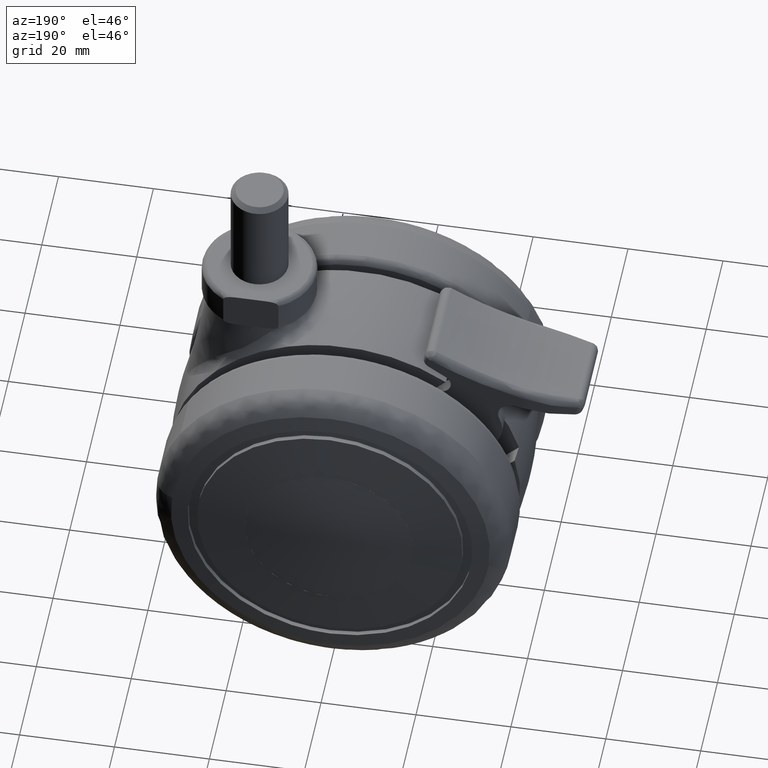
[diagram: clean part render]
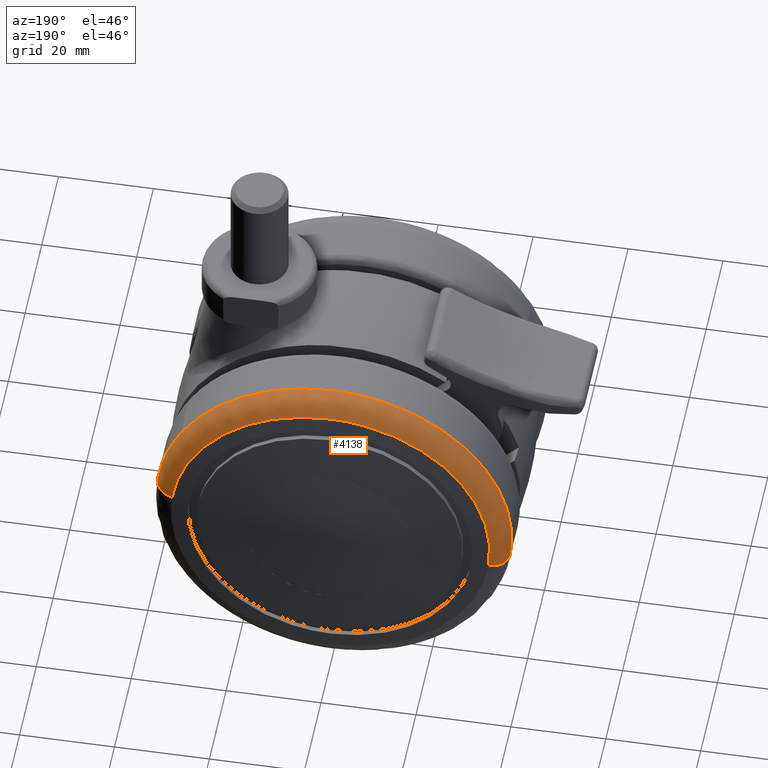
[diagram: same view with one face highlighted and labeled with its STEP entity id]
A machine part, auxiliary view. The second image highlights one B-rep face of the part: STEP entity #4138.
In plain terms, the highlighted face is a freeform B-spline surface patch.
Its self-contained STEP definition (entity closure, byte-faithful):
#3139=CARTESIAN_POINT('',(32.339734353394192,24.399329006749241,18.983982246888448));
#3140=VERTEX_POINT('',#3139);
#3146=CARTESIAN_POINT('',(0.0,24.399333999994649,37.500000000000000));
#3147=VERTEX_POINT('',#3146);
#3148=CARTESIAN_POINT('',(0.0,24.399333999994649,37.500000000000000));
#3149=CARTESIAN_POINT('',(21.470512347226343,24.399331796969498,37.499999999997542));
#3150=CARTESIAN_POINT('',(32.339734353394192,24.399329006749230,18.983982246888456));
#3158=(BOUNDED_CURVE()B_SPLINE_CURVE(2,(#3148,#3149,#3150),.UNSPECIFIED.,.F.,.U.)B_SPLINE_CURVE_WITH_KNOTS((3,3),(0.0,0.163621897406238),.UNSPECIFIED.)CURVE()GEOMETRIC_REPRESENTATION_ITEM()RATIONAL_B_SPLINE_CURVE((1.0,0.808305023201290,0.867534013018978))REPRESENTATION_ITEM(''));
#3159=EDGE_CURVE('',#3147,#3140,#3158,.T.);
#3161=CARTESIAN_POINT('',(-37.204308988794310,24.399327215464631,-4.699935389107674));
#3162=VERTEX_POINT('',#3161);
#3163=CARTESIAN_POINT('',(-37.204308988794303,24.399327215464631,-4.699935389107673));
#3164=CARTESIAN_POINT('',(-37.499999999941700,24.399327403620362,-2.359269223915413));
#3165=CARTESIAN_POINT('',(-37.499999999943590,24.399327617040800,7.133097E-012));
#3166=CARTESIAN_POINT('',(-37.499999999973568,24.399331009305818,37.500000000003332));
#3167=CARTESIAN_POINT('',(0.0,24.399333999994649,37.500000000000000));
#3175=(BOUNDED_CURVE()B_SPLINE_CURVE(2,(#3163,#3164,#3165,#3166,#3167),.UNSPECIFIED.,.F.,.U.)B_SPLINE_CURVE_WITH_KNOTS((3,2,3),(0.728321532286490,0.750000000000000,1.0),.UNSPECIFIED.)CURVE()GEOMETRIC_REPRESENTATION_ITEM()RATIONAL_B_SPLINE_CURVE((0.953608891764519,0.974602095249786,1.0,0.707106781186547,1.0))REPRESENTATION_ITEM(''));
#3176=EDGE_CURVE('',#3162,#3147,#3175,.T.);
#3308=CARTESIAN_POINT('',(37.204308988794310,24.399327215464631,4.699935389107671));
#3309=VERTEX_POINT('',#3308);
#3325=CARTESIAN_POINT('',(32.339734353394192,24.399329006749230,18.983982246888456));
#3326=CARTESIAN_POINT('',(36.238962510509886,24.399328005778571,12.341540153044839));
#3327=CARTESIAN_POINT('',(37.204308988794310,24.399327215464627,4.699935389107671));
#3335=(BOUNDED_CURVE()B_SPLINE_CURVE(2,(#3325,#3326,#3327),.UNSPECIFIED.,.F.,.U.)B_SPLINE_CURVE_WITH_KNOTS((3,3),(0.163621897406238,0.228321532286490),.UNSPECIFIED.)CURVE()GEOMETRIC_REPRESENTATION_ITEM()RATIONAL_B_SPLINE_CURVE((0.867534013018978,0.890954435812489,0.953608891764519))REPRESENTATION_ITEM(''));
#3336=EDGE_CURVE('',#3140,#3309,#3335,.T.);
#4044=CARTESIAN_POINT('',(33.110638410765013,28.888321986242559,3.710672911504585));
#4045=CARTESIAN_POINT('',(33.081367960840929,28.888321986242563,3.942372380655148));
#4046=CARTESIAN_POINT('',(28.876496757012045,28.888321986242580,37.227355300306577));
#4047=CARTESIAN_POINT('',(-4.175429271647273,28.888321986242563,33.051926028659302));
#4048=CARTESIAN_POINT('',(-37.227355300306577,28.888321986242580,28.876496757012045));
#4049=CARTESIAN_POINT('',(-33.022487492198991,28.888321986242563,-4.408459282737471));
#4050=CARTESIAN_POINT('',(-32.993220398499851,28.888321986242563,-4.640132184632035));
#4051=CARTESIAN_POINT('',(37.549752507749339,28.575279005864250,4.208159556926757));
#4052=CARTESIAN_POINT('',(37.516557794412670,28.575279005864243,4.470922769609234));
#4053=CARTESIAN_POINT('',(32.747943215860715,28.575279005864260,42.218394000826102));
#4054=CARTESIAN_POINT('',(-4.735225392482692,28.575279005864250,37.483168608343398));
#4055=CARTESIAN_POINT('',(-42.218394000826102,28.575279005864260,32.747943215860715));
#4056=CARTESIAN_POINT('',(-37.449783273256770,28.575279005864246,-4.999497531689468));
#4057=CARTESIAN_POINT('',(-37.416592366111153,28.575279005864239,-5.262230615267364));
#4058=CARTESIAN_POINT('',(37.260961846499086,24.107298746891260,4.175795104435609));
#4059=CARTESIAN_POINT('',(37.228022429737607,24.107298746891257,4.436537436636194));
#4060=CARTESIAN_POINT('',(32.496082696302217,24.107298746891271,41.893697375517945));
#4061=CARTESIAN_POINT('',(-4.698807339607861,24.107298746891264,37.194890035910078));
#4062=CARTESIAN_POINT('',(-41.893697375517945,24.107298746891271,32.496082696302217));
#4063=CARTESIAN_POINT('',(-37.161761463447760,24.107298746891257,-4.961046993359085));
#4064=CARTESIAN_POINT('',(-37.128825823604373,24.107298746891253,-5.221759428174432));
#4072=(BOUNDED_SURFACE()B_SPLINE_SURFACE(2,2,((#4044,#4051,#4058),(#4045,#4052,#4059),(#4046,#4053,#4060),(#4047,#4054,#4061),(#4048,#4055,#4062),(#4049,#4056,#4063),(#4050,#4057,#4064)),.UNSPECIFIED.,.F.,.F.,.U.)B_SPLINE_SURFACE_WITH_KNOTS((3,1,2,1,3),(3,3),(0.0,0.621235380450436,62.737552711247858,124.853870042045300,125.475033561691500),(0.0,7.429652838538877),.UNSPECIFIED.)GEOMETRIC_REPRESENTATION_ITEM()RATIONAL_B_SPLINE_SURFACE(((0.919162393050953,0.651133175099914,0.917905743474121),(0.916485597906730,0.649236937683624,0.915232607959046),(0.646160401141329,0.457738998897080,0.645276991201150),(0.913808802762508,0.647340700267334,0.912559472443971),(0.646160401141329,0.457738998897080,0.645276991201150),(0.916485288271030,0.649236718338187,0.915232298746670),(0.919161773779553,0.651132736409040,0.917905125049369)))REPRESENTATION_ITEM('')SURFACE());
#4073=ORIENTED_EDGE('',*,*,#3159,.T.);
#4074=ORIENTED_EDGE('',*,*,#3336,.T.);
#4075=CARTESIAN_POINT('',(33.339904526506977,28.858494214493330,4.211809416987338));
#4076=VERTEX_POINT('',#4075);
#4077=CARTESIAN_POINT('',(33.339904526506984,28.858494214493319,4.211809416987339));
#4078=CARTESIAN_POINT('',(37.204311022734984,28.330118050259454,4.699966566886529));
#4079=CARTESIAN_POINT('',(37.204308988794317,24.399327215464638,4.699935389107671));
#4087=(BOUNDED_CURVE()B_SPLINE_CURVE(2,(#4077,#4078,#4079),.UNSPECIFIED.,.F.,.U.)B_SPLINE_CURVE_WITH_KNOTS((3,3),(-1.708945455329805,-0.294709762184682),.UNSPECIFIED.)CURVE()GEOMETRIC_REPRESENTATION_ITEM()RATIONAL_B_SPLINE_CURVE((0.890702966076892,0.670389822836261,0.889567064219011))REPRESENTATION_ITEM(''));
#4088=EDGE_CURVE('',#4076,#3309,#4087,.T.);
#4089=ORIENTED_EDGE('',*,*,#4088,.F.);
#4090=CARTESIAN_POINT('',(0.0,28.858494288676152,33.604889112773037));
#4091=VERTEX_POINT('',#4090);
#4092=CARTESIAN_POINT('',(0.0,28.858494288676152,33.604889112773037));
#4093=CARTESIAN_POINT('',(29.626695034887806,28.858494288676155,33.604889112773058));
#4094=CARTESIAN_POINT('',(33.339904526506984,28.858494214493327,4.211809416987338));
#4102=(BOUNDED_CURVE()B_SPLINE_CURVE(2,(#4092,#4093,#4094),.UNSPECIFIED.,.F.,.U.)B_SPLINE_CURVE_WITH_KNOTS((3,3),(0.0,0.228321256474567),.UNSPECIFIED.)CURVE()GEOMETRIC_REPRESENTATION_ITEM()RATIONAL_B_SPLINE_CURVE((1.0,0.732505009070529,0.953608357578416))REPRESENTATION_ITEM(''));
#4103=EDGE_CURVE('',#4091,#4076,#4102,.T.);
#4104=ORIENTED_EDGE('',*,*,#4103,.F.);
#4105=CARTESIAN_POINT('',(-33.339904526506977,28.858494214493330,-4.211809416987348));
#4106=VERTEX_POINT('',#4105);
#4107=CARTESIAN_POINT('',(-33.339904526506984,28.858494214493323,-4.211809416987348));
#4108=CARTESIAN_POINT('',(-33.604889112773051,28.858494288676148,-2.114240417324270));
#4109=CARTESIAN_POINT('',(-33.604889112773051,28.858494288676152,-3.534030E-015));
#4110=CARTESIAN_POINT('',(-33.604889112773058,28.858494288676152,33.604889112773058));
#4111=CARTESIAN_POINT('',(0.0,28.858494288676152,33.604889112773037));
#4119=(BOUNDED_CURVE()B_SPLINE_CURVE(2,(#4107,#4108,#4109,#4110,#4111),.UNSPECIFIED.,.F.,.U.)B_SPLINE_CURVE_WITH_KNOTS((3,2,3),(0.728321256474567,0.750000000000000,1.0),.UNSPECIFIED.)CURVE()GEOMETRIC_REPRESENTATION_ITEM()RATIONAL_B_SPLINE_CURVE((0.953608357578416,0.974601772116019,1.0,0.707106781186548,1.0))REPRESENTATION_ITEM(''));
#4120=EDGE_CURVE('',#4106,#4091,#4119,.T.);
#4121=ORIENTED_EDGE('',*,*,#4120,.F.);
#4122=CARTESIAN_POINT('',(-33.339904526506984,28.858494214493330,-4.211809416987348));
#4123=CARTESIAN_POINT('',(-37.204311022734998,28.330118050259461,-4.699966566886537));
#4124=CARTESIAN_POINT('',(-37.204308988794317,24.399327215464641,-4.699935389107674));
#4132=(BOUNDED_CURVE()B_SPLINE_CURVE(2,(#4122,#4123,#4124),.UNSPECIFIED.,.F.,.U.)B_SPLINE_CURVE_WITH_KNOTS((3,3),(-1.708945455329806,-0.294709762184683),.UNSPECIFIED.)CURVE()GEOMETRIC_REPRESENTATION_ITEM()RATIONAL_B_SPLINE_CURVE((0.890702966076892,0.670389822836261,0.889567064219011))REPRESENTATION_ITEM(''));
#4133=EDGE_CURVE('',#4106,#3162,#4132,.T.);
#4134=ORIENTED_EDGE('',*,*,#4133,.T.);
#4135=ORIENTED_EDGE('',*,*,#3176,.T.);
#4136=EDGE_LOOP('',(#4073,#4074,#4089,#4104,#4121,#4134,#4135));
#4137=FACE_OUTER_BOUND('',#4136,.T.);
#4138=ADVANCED_FACE('',(#4137),#4072,.T.);